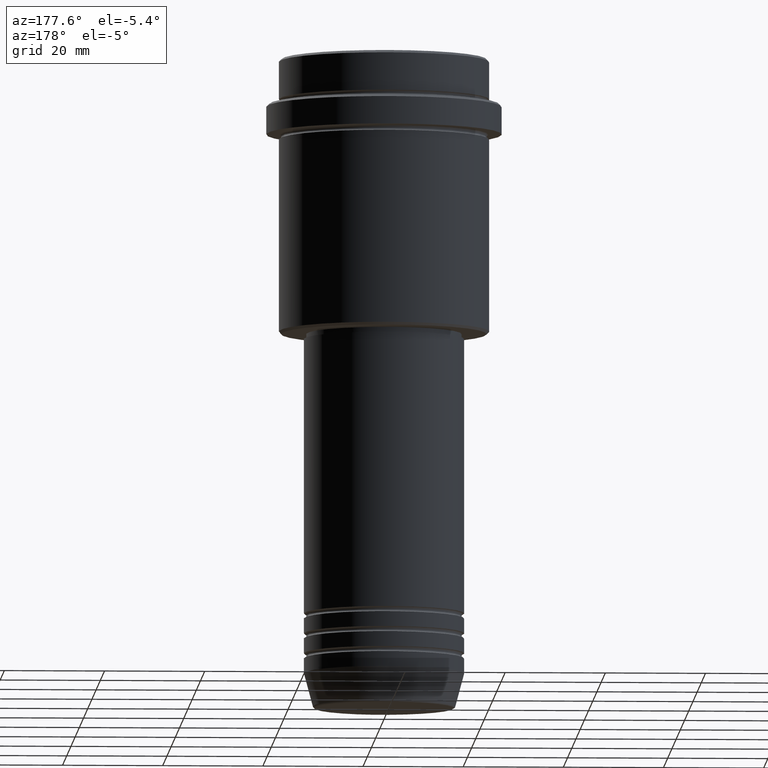
[diagram: clean part render]
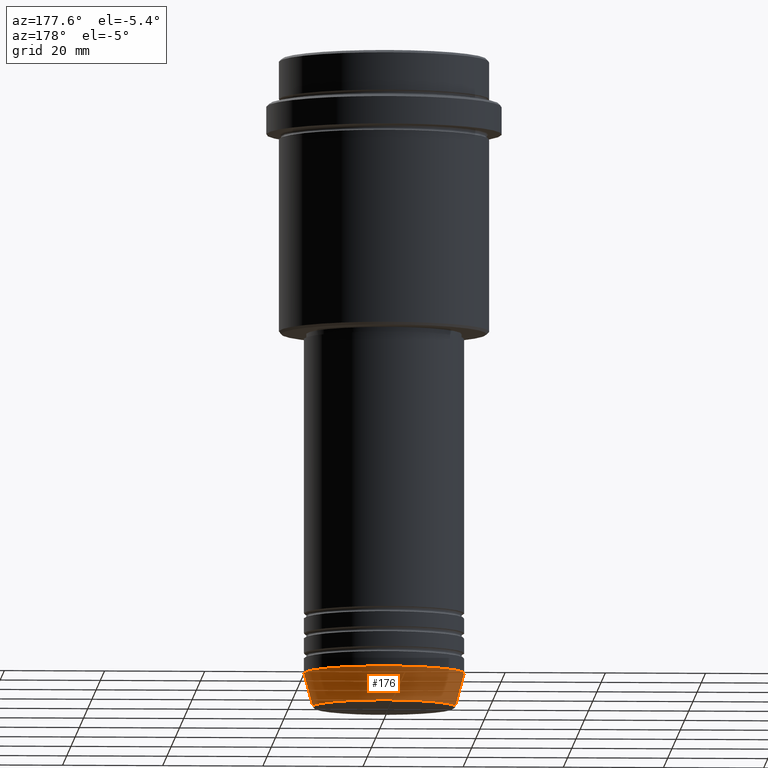
[diagram: same view with one face highlighted and labeled with its STEP entity id]
A machine part, auxiliary view. The second image highlights one B-rep face of the part: STEP entity #176.
In plain terms, the highlighted conical surface has half-angle 15 deg.
Its self-contained STEP definition (entity closure, byte-faithful):
#30 = VERTEX_POINT ( 'NONE', #107 ) ;
#33 = VECTOR ( 'NONE', #190, 1000.000000000000000 ) ;
#37 = FACE_OUTER_BOUND ( 'NONE', #1166, .T. ) ;
#107 = CARTESIAN_POINT ( 'NONE',  ( 14.22365507213718949, 0.000000000000000000, -129.6294095225512706 ) ) ;
#113 = DIRECTION ( 'NONE',  ( 1.000000000000000000, 0.000000000000000000, 0.000000000000000000 ) ) ;
#150 = ORIENTED_EDGE ( 'NONE', *, *, #905, .T. ) ;
#176 = ADVANCED_FACE ( 'NONE', ( #37 ), #497, .T. ) ;
#190 = DIRECTION ( 'NONE',  ( 0.2588190451025213501, 0.000000000000000000, 0.9659258262890680902 ) ) ;
#219 = EDGE_CURVE ( 'NONE', #1015, #732, #273, .T. ) ;
#226 = CARTESIAN_POINT ( 'NONE',  ( 0.000000000000000000, 0.000000000000000000, -123.0000000000000000 ) ) ;
#241 = CARTESIAN_POINT ( 'NONE',  ( -14.22365507213718949, 1.850665122131323731E-15, -129.6294095225512706 ) ) ;
#248 = CARTESIAN_POINT ( 'NONE',  ( 16.00000000000000000, 0.000000000000000000, -123.0000000000000000 ) ) ;
#273 = CIRCLE ( 'NONE', #452, 16.00000000000000000 ) ;
#312 = DIRECTION ( 'NONE',  ( 1.000000000000000000, 0.000000000000000000, 0.000000000000000000 ) ) ;
#390 = CARTESIAN_POINT ( 'NONE',  ( -16.00000000000000000, 1.959434878635765131E-15, -123.0000000000000000 ) ) ;
#437 = DIRECTION ( 'NONE',  ( -0.000000000000000000, -0.000000000000000000, 1.000000000000000000 ) ) ;
#452 = AXIS2_PLACEMENT_3D ( 'NONE', #968, #472, #312 ) ;
#472 = DIRECTION ( 'NONE',  ( -0.000000000000000000, -0.000000000000000000, 1.000000000000000000 ) ) ;
#497 = CONICAL_SURFACE ( 'NONE', #995, 16.00000000000000000, 0.2617993877991500740 ) ;
#549 = CIRCLE ( 'NONE', #555, 14.22365507213718949 ) ;
#555 = AXIS2_PLACEMENT_3D ( 'NONE', #1236, #906, #587 ) ;
#587 = DIRECTION ( 'NONE',  ( 1.000000000000000000, 0.000000000000000000, 0.000000000000000000 ) ) ;
#659 = LINE ( 'NONE', #1109, #1238 ) ;
#732 = VERTEX_POINT ( 'NONE', #390 ) ;
#743 = ORIENTED_EDGE ( 'NONE', *, *, #219, .F. ) ;
#905 = EDGE_CURVE ( 'NONE', #30, #1268, #549, .T. ) ;
#906 = DIRECTION ( 'NONE',  ( -0.000000000000000000, -0.000000000000000000, 1.000000000000000000 ) ) ;
#947 = EDGE_CURVE ( 'NONE', #1268, #732, #659, .T. ) ;
#968 = CARTESIAN_POINT ( 'NONE',  ( 0.000000000000000000, 0.000000000000000000, -123.0000000000000000 ) ) ;
#995 = AXIS2_PLACEMENT_3D ( 'NONE', #226, #437, #113 ) ;
#1015 = VERTEX_POINT ( 'NONE', #1049 ) ;
#1029 = ORIENTED_EDGE ( 'NONE', *, *, #1117, .F. ) ;
#1049 = CARTESIAN_POINT ( 'NONE',  ( 16.00000000000000000, 0.000000000000000000, -123.0000000000000000 ) ) ;
#1109 = CARTESIAN_POINT ( 'NONE',  ( -16.00000000000000000, 1.959434878635765131E-15, -123.0000000000000000 ) ) ;
#1117 = EDGE_CURVE ( 'NONE', #30, #1015, #1217, .T. ) ;
#1166 = EDGE_LOOP ( 'NONE', ( #150, #1373, #743, #1029 ) ) ;
#1217 = LINE ( 'NONE', #248, #33 ) ;
#1236 = CARTESIAN_POINT ( 'NONE',  ( 0.000000000000000000, 0.000000000000000000, -129.6294095225512706 ) ) ;
#1238 = VECTOR ( 'NONE', #1239, 1000.000000000000000 ) ;
#1239 = DIRECTION ( 'NONE',  ( -0.2588190451025213501, 3.169619151431772337E-17, 0.9659258262890680902 ) ) ;
#1268 = VERTEX_POINT ( 'NONE', #241 ) ;
#1373 = ORIENTED_EDGE ( 'NONE', *, *, #947, .T. ) ;